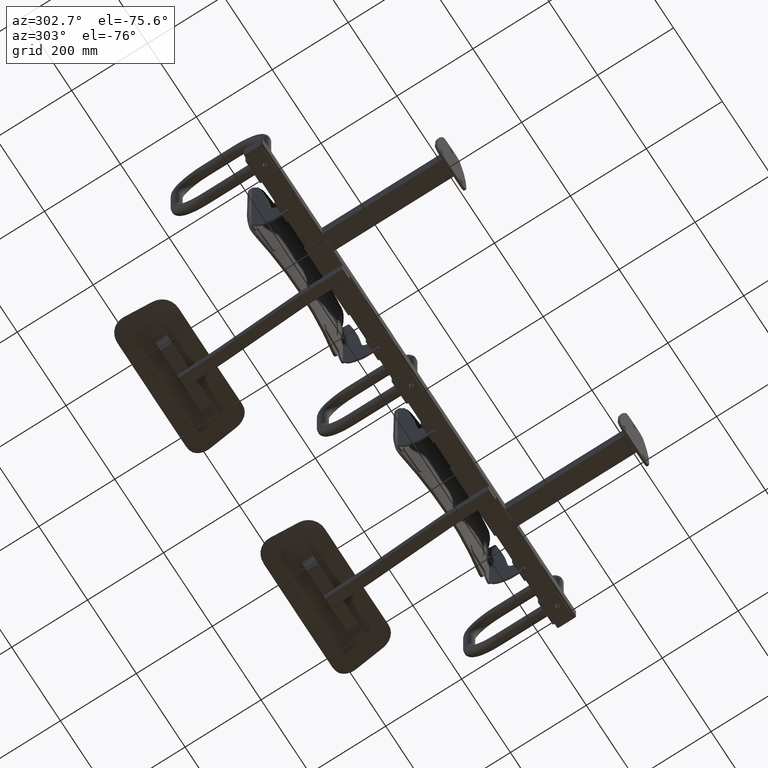
[diagram: clean part render]
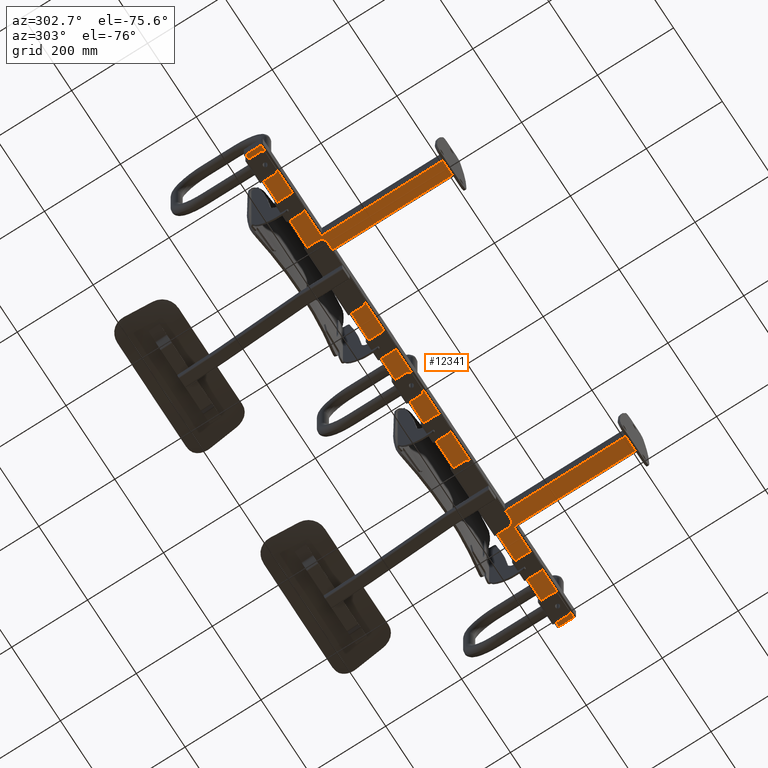
[diagram: same view with one face highlighted and labeled with its STEP entity id]
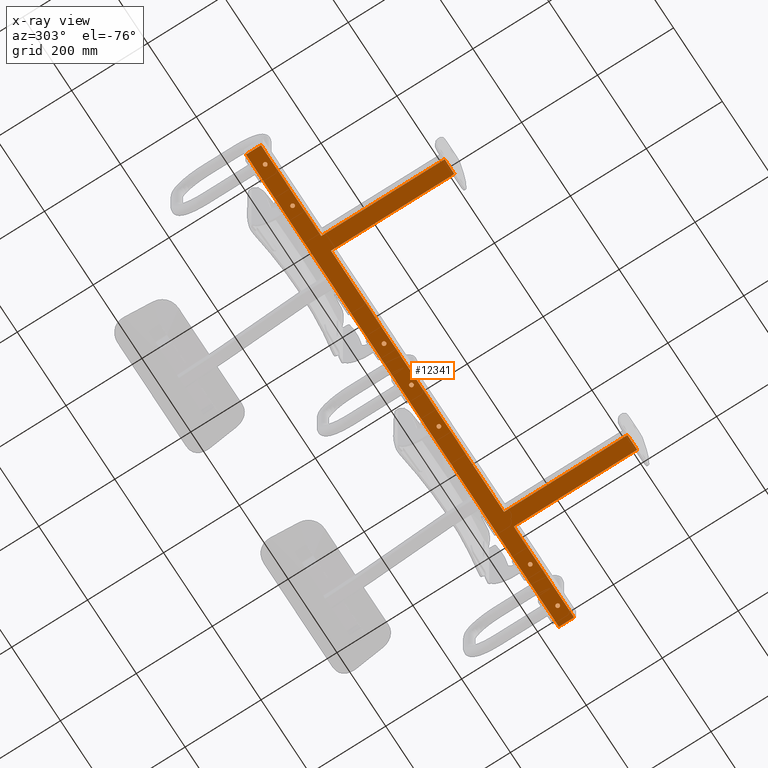
[diagram: x-ray of the same camera — body ghosted, the highlighted face saturated]
A machine part, auxiliary view. The second image highlights one B-rep face of the part: STEP entity #12341.
The next image is the same camera in x-ray: the body ghosted, the highlighted face saturated — about 0% of this face is hidden behind the body in this view.
In plain terms, the highlighted planar face has unit normal (0, 0, -1).
Its self-contained STEP definition (entity closure, byte-faithful):
#103 = EDGE_LOOP ( 'NONE', ( #10945, #10930 ) ) ;
#274 = VERTEX_POINT ( 'NONE', #301 ) ;
#280 = VERTEX_POINT ( 'NONE', #303 ) ;
#285 = VERTEX_POINT ( 'NONE', #308 ) ;
#301 = CARTESIAN_POINT ( 'NONE',  ( -355.0000000000000000, 6.000000000000000000, -25.00000000000000000 ) ) ;
#303 = CARTESIAN_POINT ( 'NONE',  ( -117.7500000000001600, 347.0000000000000000, -25.00000000000000000 ) ) ;
#308 = CARTESIAN_POINT ( 'NONE',  ( 117.7500000000001600, 347.0000000000000000, -25.00000000000000000 ) ) ;
#4902 = CIRCLE ( 'NONE', #10584, 5.250000000000000900 ) ;
#4915 = CIRCLE ( 'NONE', #10586, 5.249999999999976900 ) ;
#4928 = CIRCLE ( 'NONE', #10588, 5.249999999999976900 ) ;
#4941 = CIRCLE ( 'NONE', #10590, 5.250000000000004400 ) ;
#4954 = CIRCLE ( 'NONE', #10592, 5.249999999999976900 ) ;
#4967 = CIRCLE ( 'NONE', #10594, 5.250000000000004400 ) ;
#4980 = CIRCLE ( 'NONE', #10596, 5.249999999999976900 ) ;
#5325 = FACE_BOUND ( 'NONE', #12931, .T. ) ;
#5327 = FACE_BOUND ( 'NONE', #103, .T. ) ;
#5329 = FACE_BOUND ( 'NONE', #12978, .T. ) ;
#5331 = FACE_OUTER_BOUND ( 'NONE', #12993, .T. ) ;
#5333 = FACE_BOUND ( 'NONE', #13040, .T. ) ;
#5336 = FACE_BOUND ( 'NONE', #12954, .T. ) ;
#5338 = FACE_BOUND ( 'NONE', #12979, .T. ) ;
#5340 = FACE_BOUND ( 'NONE', #12976, .T. ) ;
#7884 = VERTEX_POINT ( 'NONE', #16524 ) ;
#10487 = AXIS2_PLACEMENT_3D ( 'NONE', #16862, #16863, #16864 ) ;
#10488 = AXIS2_PLACEMENT_3D ( 'NONE', #16865, #16866, #16867 ) ;
#10489 = AXIS2_PLACEMENT_3D ( 'NONE', #16870, #16871, #16872 ) ;
#10490 = AXIS2_PLACEMENT_3D ( 'NONE', #16895, #16896, #16897 ) ;
#10491 = AXIS2_PLACEMENT_3D ( 'NONE', #16898, #16899, #16900 ) ;
#10492 = AXIS2_PLACEMENT_3D ( 'NONE', #16901, #16902, #16903 ) ;
#10493 = AXIS2_PLACEMENT_3D ( 'NONE', #16906, #16907, #16908 ) ;
#10584 = AXIS2_PLACEMENT_3D ( 'NONE', #17614, #17615, #17616 ) ;
#10586 = AXIS2_PLACEMENT_3D ( 'NONE', #17624, #17625, #17626 ) ;
#10588 = AXIS2_PLACEMENT_3D ( 'NONE', #17634, #17635, #17636 ) ;
#10590 = AXIS2_PLACEMENT_3D ( 'NONE', #17644, #17645, #17646 ) ;
#10592 = AXIS2_PLACEMENT_3D ( 'NONE', #17654, #17655, #17656 ) ;
#10594 = AXIS2_PLACEMENT_3D ( 'NONE', #17664, #17665, #17666 ) ;
#10596 = AXIS2_PLACEMENT_3D ( 'NONE', #17674, #17675, #17676 ) ;
#10607 = VERTEX_POINT ( 'NONE', #16551 ) ;
#10618 = VERTEX_POINT ( 'NONE', #16562 ) ;
#10621 = VERTEX_POINT ( 'NONE', #16565 ) ;
#10623 = VERTEX_POINT ( 'NONE', #16567 ) ;
#10625 = VERTEX_POINT ( 'NONE', #16569 ) ;
#10626 = VERTEX_POINT ( 'NONE', #16570 ) ;
#10628 = VERTEX_POINT ( 'NONE', #16572 ) ;
#10629 = VERTEX_POINT ( 'NONE', #16573 ) ;
#10630 = VERTEX_POINT ( 'NONE', #16574 ) ;
#10632 = VERTEX_POINT ( 'NONE', #16576 ) ;
#10644 = VERTEX_POINT ( 'NONE', #16588 ) ;
#10665 = VERTEX_POINT ( 'NONE', #16609 ) ;
#10681 = VERTEX_POINT ( 'NONE', #16625 ) ;
#10699 = VERTEX_POINT ( 'NONE', #16643 ) ;
#10724 = VERTEX_POINT ( 'NONE', #16668 ) ;
#10731 = VERTEX_POINT ( 'NONE', #16675 ) ;
#10733 = VERTEX_POINT ( 'NONE', #16677 ) ;
#10746 = VERTEX_POINT ( 'NONE', #16690 ) ;
#10754 = VERTEX_POINT ( 'NONE', #16698 ) ;
#10767 = VERTEX_POINT ( 'NONE', #16711 ) ;
#10775 = VERTEX_POINT ( 'NONE', #16719 ) ;
#10776 = VERTEX_POINT ( 'NONE', #16720 ) ;
#10899 = ORIENTED_EDGE ( 'NONE', *, *, #11620, .T. ) ;
#10900 = ORIENTED_EDGE ( 'NONE', *, *, #12168, .T. ) ;
#10901 = ORIENTED_EDGE ( 'NONE', *, *, #11612, .F. ) ;
#10912 = ORIENTED_EDGE ( 'NONE', *, *, #11617, .T. ) ;
#10922 = ORIENTED_EDGE ( 'NONE', *, *, #12176, .T. ) ;
#10927 = ORIENTED_EDGE ( 'NONE', *, *, #11610, .T. ) ;
#10928 = ORIENTED_EDGE ( 'NONE', *, *, #12188, .T. ) ;
#10930 = ORIENTED_EDGE ( 'NONE', *, *, #11607, .T. ) ;
#10931 = ORIENTED_EDGE ( 'NONE', *, *, #11611, .T. ) ;
#10937 = ORIENTED_EDGE ( 'NONE', *, *, #11608, .T. ) ;
#10940 = ORIENTED_EDGE ( 'NONE', *, *, #11606, .T. ) ;
#10943 = ORIENTED_EDGE ( 'NONE', *, *, #12172, .T. ) ;
#10945 = ORIENTED_EDGE ( 'NONE', *, *, #12184, .T. ) ;
#10946 = ORIENTED_EDGE ( 'NONE', *, *, #11614, .T. ) ;
#10947 = ORIENTED_EDGE ( 'NONE', *, *, #11605, .T. ) ;
#10950 = ORIENTED_EDGE ( 'NONE', *, *, #11615, .T. ) ;
#10952 = ORIENTED_EDGE ( 'NONE', *, *, #12164, .T. ) ;
#11565 = EDGE_CURVE ( 'NONE', #10607, #274, #15539, .T. ) ;
#11605 = EDGE_CURVE ( 'NONE', #10629, #10630, #15600, .T. ) ;
#11606 = EDGE_CURVE ( 'NONE', #285, #10644, #15601, .T. ) ;
#11607 = EDGE_CURVE ( 'NONE', #10623, #280, #15602, .T. ) ;
#11608 = EDGE_CURVE ( 'NONE', #10754, #10681, #15603, .T. ) ;
#11609 = EDGE_CURVE ( 'NONE', #10681, #10767, #15604, .T. ) ;
#11610 = EDGE_CURVE ( 'NONE', #10767, #10776, #15607, .T. ) ;
#11611 = EDGE_CURVE ( 'NONE', #10776, #10775, #15609, .T. ) ;
#11612 = EDGE_CURVE ( 'NONE', #10724, #10775, #15611, .T. ) ;
#11613 = EDGE_CURVE ( 'NONE', #10724, #10746, #15613, .T. ) ;
#11614 = EDGE_CURVE ( 'NONE', #10746, #10731, #15615, .T. ) ;
#11615 = EDGE_CURVE ( 'NONE', #10731, #274, #15617, .T. ) ;
#11616 = EDGE_CURVE ( 'NONE', #10607, #10733, #15619, .T. ) ;
#11617 = EDGE_CURVE ( 'NONE', #10733, #10699, #15621, .T. ) ;
#11618 = EDGE_CURVE ( 'NONE', #10699, #10754, #15623, .T. ) ;
#11619 = EDGE_CURVE ( 'NONE', #10632, #10665, #15625, .T. ) ;
#11620 = EDGE_CURVE ( 'NONE', #10621, #10618, #15605, .T. ) ;
#11621 = EDGE_CURVE ( 'NONE', #10625, #10626, #15627, .T. ) ;
#11622 = EDGE_CURVE ( 'NONE', #10628, #7884, #15628, .T. ) ;
#12164 = EDGE_CURVE ( 'NONE', #7884, #10628, #4902, .T. ) ;
#12168 = EDGE_CURVE ( 'NONE', #10630, #10629, #4915, .T. ) ;
#12172 = EDGE_CURVE ( 'NONE', #10626, #10625, #4928, .T. ) ;
#12176 = EDGE_CURVE ( 'NONE', #10644, #285, #4941, .T. ) ;
#12180 = EDGE_CURVE ( 'NONE', #10618, #10621, #4954, .T. ) ;
#12184 = EDGE_CURVE ( 'NONE', #280, #10623, #4967, .T. ) ;
#12188 = EDGE_CURVE ( 'NONE', #10665, #10632, #4980, .T. ) ;
#12341 = ADVANCED_FACE ( 'NONE', ( #5325, #5333, #5327, #5331, #5329, #5336, #5338, #5340 ), #18180, .T. ) ;
#12931 = EDGE_LOOP ( 'NONE', ( #10900, #10947 ) ) ;
#12954 = EDGE_LOOP ( 'NONE', ( #19734, #10899 ) ) ;
#12976 = EDGE_LOOP ( 'NONE', ( #10952, #20421 ) ) ;
#12978 = EDGE_LOOP ( 'NONE', ( #10928, #20419 ) ) ;
#12979 = EDGE_LOOP ( 'NONE', ( #10943, #20413 ) ) ;
#12993 = EDGE_LOOP ( 'NONE', ( #10937, #19731, #10927, #10931, #10901, #19730, #10946, #10950, #19732, #19728, #10912, #19720 ) ) ;
#13040 = EDGE_LOOP ( 'NONE', ( #10922, #10940 ) ) ;
#15539 = LINE ( 'NONE', #16757, #15541 ) ;
#15541 = VECTOR ( 'NONE', #16758, 1000.000000000000000 ) ;
#15600 = CIRCLE ( 'NONE', #10487, 5.249999999999976900 ) ;
#15601 = CIRCLE ( 'NONE', #10488, 5.250000000000004400 ) ;
#15602 = CIRCLE ( 'NONE', #10489, 5.250000000000004400 ) ;
#15603 = LINE ( 'NONE', #16869, #15606 ) ;
#15604 = LINE ( 'NONE', #16868, #15608 ) ;
#15605 = CIRCLE ( 'NONE', #10491, 5.249999999999976900 ) ;
#15606 = VECTOR ( 'NONE', #16874, 1000.000000000000000 ) ;
#15607 = LINE ( 'NONE', #16876, #15610 ) ;
#15608 = VECTOR ( 'NONE', #16875, 1000.000000000000000 ) ;
#15609 = LINE ( 'NONE', #16878, #15612 ) ;
#15610 = VECTOR ( 'NONE', #16877, 1000.000000000000000 ) ;
#15611 = LINE ( 'NONE', #16880, #15614 ) ;
#15612 = VECTOR ( 'NONE', #16879, 1000.000000000000000 ) ;
#15613 = LINE ( 'NONE', #16882, #15616 ) ;
#15614 = VECTOR ( 'NONE', #16881, 1000.000000000000000 ) ;
#15615 = LINE ( 'NONE', #16884, #15618 ) ;
#15616 = VECTOR ( 'NONE', #16883, 1000.000000000000000 ) ;
#15617 = LINE ( 'NONE', #16886, #15620 ) ;
#15618 = VECTOR ( 'NONE', #16885, 1000.000000000000000 ) ;
#15619 = LINE ( 'NONE', #16888, #15622 ) ;
#15620 = VECTOR ( 'NONE', #16887, 1000.000000000000000 ) ;
#15621 = LINE ( 'NONE', #16890, #15624 ) ;
#15622 = VECTOR ( 'NONE', #16889, 1000.000000000000000 ) ;
#15623 = LINE ( 'NONE', #16892, #15626 ) ;
#15624 = VECTOR ( 'NONE', #16891, 1000.000000000000000 ) ;
#15625 = CIRCLE ( 'NONE', #10490, 5.249999999999976900 ) ;
#15626 = VECTOR ( 'NONE', #16893, 1000.000000000000000 ) ;
#15627 = CIRCLE ( 'NONE', #10492, 5.249999999999976900 ) ;
#15628 = CIRCLE ( 'NONE', #10493, 5.250000000000000900 ) ;
#16524 = CARTESIAN_POINT ( 'NONE',  ( -5.250000000000000900, 347.0000000000000600, -25.00000000000000000 ) ) ;
#16551 = CARTESIAN_POINT ( 'NONE',  ( -395.0000000000000000, 6.000000000000000000, -25.00000000000000000 ) ) ;
#16562 = CARTESIAN_POINT ( 'NONE',  ( 482.2500000000001700, 347.0000000000000000, -25.00000000000000000 ) ) ;
#16565 = CARTESIAN_POINT ( 'NONE',  ( 492.7500000000001100, 347.0000000000000000, -25.00000000000000000 ) ) ;
#16567 = CARTESIAN_POINT ( 'NONE',  ( -107.2500000000001600, 347.0000000000000000, -25.00000000000000000 ) ) ;
#16569 = CARTESIAN_POINT ( 'NONE',  ( -594.7500000000000000, 347.0000000000000600, -25.00000000000000000 ) ) ;
#16570 = CARTESIAN_POINT ( 'NONE',  ( -605.2500000000000000, 347.0000000000000600, -25.00000000000000000 ) ) ;
#16572 = CARTESIAN_POINT ( 'NONE',  ( 5.250000000000000900, 347.0000000000000600, -25.00000000000000000 ) ) ;
#16573 = CARTESIAN_POINT ( 'NONE',  ( 605.2500000000000000, 347.0000000000000600, -25.00000000000000000 ) ) ;
#16574 = CARTESIAN_POINT ( 'NONE',  ( 594.7500000000000000, 347.0000000000000600, -25.00000000000000000 ) ) ;
#16576 = CARTESIAN_POINT ( 'NONE',  ( -482.2500000000001700, 347.0000000000000000, -25.00000000000000000 ) ) ;
#16588 = CARTESIAN_POINT ( 'NONE',  ( 107.2500000000001600, 347.0000000000000000, -25.00000000000000000 ) ) ;
#16609 = CARTESIAN_POINT ( 'NONE',  ( -492.7500000000001100, 347.0000000000000000, -25.00000000000000000 ) ) ;
#16625 = CARTESIAN_POINT ( 'NONE',  ( 642.0000000000000000, 371.0000000000000000, -25.00000000000000000 ) ) ;
#16643 = CARTESIAN_POINT ( 'NONE',  ( -642.0000000000001100, 331.0000000000000000, -25.00000000000000000 ) ) ;
#16668 = CARTESIAN_POINT ( 'NONE',  ( 355.0000000000000000, 6.000000000000000000, -25.00000000000000000 ) ) ;
#16675 = CARTESIAN_POINT ( 'NONE',  ( -354.9999999999999400, 331.0000000000000000, -25.00000000000000000 ) ) ;
#16677 = CARTESIAN_POINT ( 'NONE',  ( -395.0000000000000600, 331.0000000000000000, -25.00000000000000000 ) ) ;
#16690 = CARTESIAN_POINT ( 'NONE',  ( 354.9999999999999400, 331.0000000000000000, -25.00000000000000000 ) ) ;
#16698 = CARTESIAN_POINT ( 'NONE',  ( -642.0000000000001100, 371.0000000000000000, -25.00000000000000000 ) ) ;
#16711 = CARTESIAN_POINT ( 'NONE',  ( 642.0000000000001100, 331.0000000000000000, -25.00000000000000000 ) ) ;
#16719 = CARTESIAN_POINT ( 'NONE',  ( 395.0000000000000000, 6.000000000000000000, -25.00000000000000000 ) ) ;
#16720 = CARTESIAN_POINT ( 'NONE',  ( 395.0000000000000600, 331.0000000000000000, -25.00000000000000000 ) ) ;
#16757 = CARTESIAN_POINT ( 'NONE',  ( -400.0000000000000000, 6.000000000000000000, -25.00000000000000000 ) ) ;
#16758 = DIRECTION ( 'NONE',  ( 1.000000000000000000, 0.0000000000000000000, 0.0000000000000000000 ) ) ;
#16862 = CARTESIAN_POINT ( 'NONE',  ( 600.0000000000000000, 347.0000000000000600, -25.00000000000000000 ) ) ;
#16863 = DIRECTION ( 'NONE',  ( 0.0000000000000000000, 0.0000000000000000000, 1.000000000000000000 ) ) ;
#16864 = DIRECTION ( 'NONE',  ( -1.000000000000000000, 0.0000000000000000000, 0.0000000000000000000 ) ) ;
#16865 = CARTESIAN_POINT ( 'NONE',  ( 112.5000000000001600, 347.0000000000000000, -25.00000000000000000 ) ) ;
#16866 = DIRECTION ( 'NONE',  ( 0.0000000000000000000, 0.0000000000000000000, 1.000000000000000000 ) ) ;
#16867 = DIRECTION ( 'NONE',  ( -1.000000000000000000, 0.0000000000000000000, 0.0000000000000000000 ) ) ;
#16868 = CARTESIAN_POINT ( 'NONE',  ( 642.0000000000001100, 331.0000000000000000, -25.00000000000000000 ) ) ;
#16869 = CARTESIAN_POINT ( 'NONE',  ( 644.0000000000001100, 371.0000000000000000, -25.00000000000000000 ) ) ;
#16870 = CARTESIAN_POINT ( 'NONE',  ( -112.5000000000001600, 347.0000000000000000, -25.00000000000000000 ) ) ;
#16871 = DIRECTION ( 'NONE',  ( 0.0000000000000000000, 0.0000000000000000000, 1.000000000000000000 ) ) ;
#16872 = DIRECTION ( 'NONE',  ( 1.000000000000000000, 0.0000000000000000000, 0.0000000000000000000 ) ) ;
#16874 = DIRECTION ( 'NONE',  ( 1.000000000000000000, -0.0000000000000000000, -0.0000000000000000000 ) ) ;
#16875 = DIRECTION ( 'NONE',  ( 2.220446049250313500E-015, -1.000000000000000000, -0.0000000000000000000 ) ) ;
#16876 = CARTESIAN_POINT ( 'NONE',  ( 400.0000000000000600, 331.0000000000000000, -25.00000000000000000 ) ) ;
#16877 = DIRECTION ( 'NONE',  ( -1.000000000000000000, -0.0000000000000000000, -0.0000000000000000000 ) ) ;
#16878 = CARTESIAN_POINT ( 'NONE',  ( 395.0000000000000000, 6.000000000000000900, -25.00000000000000000 ) ) ;
#16879 = DIRECTION ( 'NONE',  ( -1.734723475976807100E-016, -1.000000000000000000, -0.0000000000000000000 ) ) ;
#16880 = CARTESIAN_POINT ( 'NONE',  ( 350.0000000000000000, 6.000000000000000000, -25.00000000000000000 ) ) ;
#16881 = DIRECTION ( 'NONE',  ( 1.000000000000000000, 0.0000000000000000000, 0.0000000000000000000 ) ) ;
#16882 = CARTESIAN_POINT ( 'NONE',  ( 354.9999999999999400, 326.0000000000000000, -25.00000000000000000 ) ) ;
#16883 = DIRECTION ( 'NONE',  ( -1.734723475976807100E-016, 1.000000000000000000, -0.0000000000000000000 ) ) ;
#16884 = CARTESIAN_POINT ( 'NONE',  ( -349.9999999999999400, 331.0000000000000000, -25.00000000000000000 ) ) ;
#16885 = DIRECTION ( 'NONE',  ( -1.000000000000000000, -0.0000000000000000000, -0.0000000000000000000 ) ) ;
#16886 = CARTESIAN_POINT ( 'NONE',  ( -355.0000000000000000, 6.000000000000000900, -25.00000000000000000 ) ) ;
#16887 = DIRECTION ( 'NONE',  ( -1.734723475976807100E-016, -1.000000000000000000, -0.0000000000000000000 ) ) ;
#16888 = CARTESIAN_POINT ( 'NONE',  ( -395.0000000000000600, 326.0000000000000000, -25.00000000000000000 ) ) ;
#16889 = DIRECTION ( 'NONE',  ( -1.734723475976807100E-016, 1.000000000000000000, -0.0000000000000000000 ) ) ;
#16890 = CARTESIAN_POINT ( 'NONE',  ( -644.0000000000001100, 331.0000000000000000, -25.00000000000000000 ) ) ;
#16891 = DIRECTION ( 'NONE',  ( -1.000000000000000000, -0.0000000000000000000, -0.0000000000000000000 ) ) ;
#16892 = CARTESIAN_POINT ( 'NONE',  ( -642.0000000000001100, 371.0000000000000000, -25.00000000000000000 ) ) ;
#16893 = DIRECTION ( 'NONE',  ( -0.0000000000000000000, 1.000000000000000000, -0.0000000000000000000 ) ) ;
#16895 = CARTESIAN_POINT ( 'NONE',  ( -487.5000000000001700, 347.0000000000000000, -25.00000000000000000 ) ) ;
#16896 = DIRECTION ( 'NONE',  ( 0.0000000000000000000, 0.0000000000000000000, 1.000000000000000000 ) ) ;
#16897 = DIRECTION ( 'NONE',  ( 1.000000000000000000, 0.0000000000000000000, 0.0000000000000000000 ) ) ;
#16898 = CARTESIAN_POINT ( 'NONE',  ( 487.5000000000001700, 347.0000000000000000, -25.00000000000000000 ) ) ;
#16899 = DIRECTION ( 'NONE',  ( 0.0000000000000000000, 0.0000000000000000000, 1.000000000000000000 ) ) ;
#16900 = DIRECTION ( 'NONE',  ( -1.000000000000000000, 0.0000000000000000000, 0.0000000000000000000 ) ) ;
#16901 = CARTESIAN_POINT ( 'NONE',  ( -600.0000000000000000, 347.0000000000000600, -25.00000000000000000 ) ) ;
#16902 = DIRECTION ( 'NONE',  ( 0.0000000000000000000, 0.0000000000000000000, 1.000000000000000000 ) ) ;
#16903 = DIRECTION ( 'NONE',  ( 1.000000000000000000, 0.0000000000000000000, 0.0000000000000000000 ) ) ;
#16906 = CARTESIAN_POINT ( 'NONE',  ( 0.0000000000000000000, 347.0000000000000600, -25.00000000000000000 ) ) ;
#16907 = DIRECTION ( 'NONE',  ( 0.0000000000000000000, 0.0000000000000000000, 1.000000000000000000 ) ) ;
#16908 = DIRECTION ( 'NONE',  ( 1.000000000000000000, 0.0000000000000000000, 0.0000000000000000000 ) ) ;
#17614 = CARTESIAN_POINT ( 'NONE',  ( 0.0000000000000000000, 347.0000000000000600, -25.00000000000000000 ) ) ;
#17615 = DIRECTION ( 'NONE',  ( 0.0000000000000000000, 0.0000000000000000000, 1.000000000000000000 ) ) ;
#17616 = DIRECTION ( 'NONE',  ( 1.000000000000000000, 0.0000000000000000000, 0.0000000000000000000 ) ) ;
#17624 = CARTESIAN_POINT ( 'NONE',  ( 600.0000000000000000, 347.0000000000000600, -25.00000000000000000 ) ) ;
#17625 = DIRECTION ( 'NONE',  ( 0.0000000000000000000, 0.0000000000000000000, 1.000000000000000000 ) ) ;
#17626 = DIRECTION ( 'NONE',  ( -1.000000000000000000, 0.0000000000000000000, 0.0000000000000000000 ) ) ;
#17634 = CARTESIAN_POINT ( 'NONE',  ( -600.0000000000000000, 347.0000000000000600, -25.00000000000000000 ) ) ;
#17635 = DIRECTION ( 'NONE',  ( 0.0000000000000000000, 0.0000000000000000000, 1.000000000000000000 ) ) ;
#17636 = DIRECTION ( 'NONE',  ( 1.000000000000000000, 0.0000000000000000000, 0.0000000000000000000 ) ) ;
#17644 = CARTESIAN_POINT ( 'NONE',  ( 112.5000000000001600, 347.0000000000000000, -25.00000000000000000 ) ) ;
#17645 = DIRECTION ( 'NONE',  ( 0.0000000000000000000, 0.0000000000000000000, 1.000000000000000000 ) ) ;
#17646 = DIRECTION ( 'NONE',  ( -1.000000000000000000, 0.0000000000000000000, 0.0000000000000000000 ) ) ;
#17654 = CARTESIAN_POINT ( 'NONE',  ( 487.5000000000001700, 347.0000000000000000, -25.00000000000000000 ) ) ;
#17655 = DIRECTION ( 'NONE',  ( 0.0000000000000000000, 0.0000000000000000000, 1.000000000000000000 ) ) ;
#17656 = DIRECTION ( 'NONE',  ( -1.000000000000000000, 0.0000000000000000000, 0.0000000000000000000 ) ) ;
#17664 = CARTESIAN_POINT ( 'NONE',  ( -112.5000000000001600, 347.0000000000000000, -25.00000000000000000 ) ) ;
#17665 = DIRECTION ( 'NONE',  ( 0.0000000000000000000, 0.0000000000000000000, 1.000000000000000000 ) ) ;
#17666 = DIRECTION ( 'NONE',  ( 1.000000000000000000, 0.0000000000000000000, 0.0000000000000000000 ) ) ;
#17674 = CARTESIAN_POINT ( 'NONE',  ( -487.5000000000001700, 347.0000000000000000, -25.00000000000000000 ) ) ;
#17675 = DIRECTION ( 'NONE',  ( 0.0000000000000000000, 0.0000000000000000000, 1.000000000000000000 ) ) ;
#17676 = DIRECTION ( 'NONE',  ( 1.000000000000000000, 0.0000000000000000000, 0.0000000000000000000 ) ) ;
#17798 = AXIS2_PLACEMENT_3D ( 'NONE', #18179, #18174, #18181 ) ;
#18174 = DIRECTION ( 'NONE',  ( 0.0000000000000000000, 0.0000000000000000000, -1.000000000000000000 ) ) ;
#18179 = CARTESIAN_POINT ( 'NONE',  ( 0.0000000000000000000, 0.0000000000000000000, -25.00000000000000000 ) ) ;
#18180 = PLANE ( 'NONE',  #17798 ) ;
#18181 = DIRECTION ( 'NONE',  ( -1.000000000000000000, 0.0000000000000000000, -0.0000000000000000000 ) ) ;
#19720 = ORIENTED_EDGE ( 'NONE', *, *, #11618, .T. ) ;
#19728 = ORIENTED_EDGE ( 'NONE', *, *, #11616, .T. ) ;
#19730 = ORIENTED_EDGE ( 'NONE', *, *, #11613, .T. ) ;
#19731 = ORIENTED_EDGE ( 'NONE', *, *, #11609, .T. ) ;
#19732 = ORIENTED_EDGE ( 'NONE', *, *, #11565, .F. ) ;
#19734 = ORIENTED_EDGE ( 'NONE', *, *, #12180, .T. ) ;
#20413 = ORIENTED_EDGE ( 'NONE', *, *, #11621, .T. ) ;
#20419 = ORIENTED_EDGE ( 'NONE', *, *, #11619, .T. ) ;
#20421 = ORIENTED_EDGE ( 'NONE', *, *, #11622, .T. ) ;